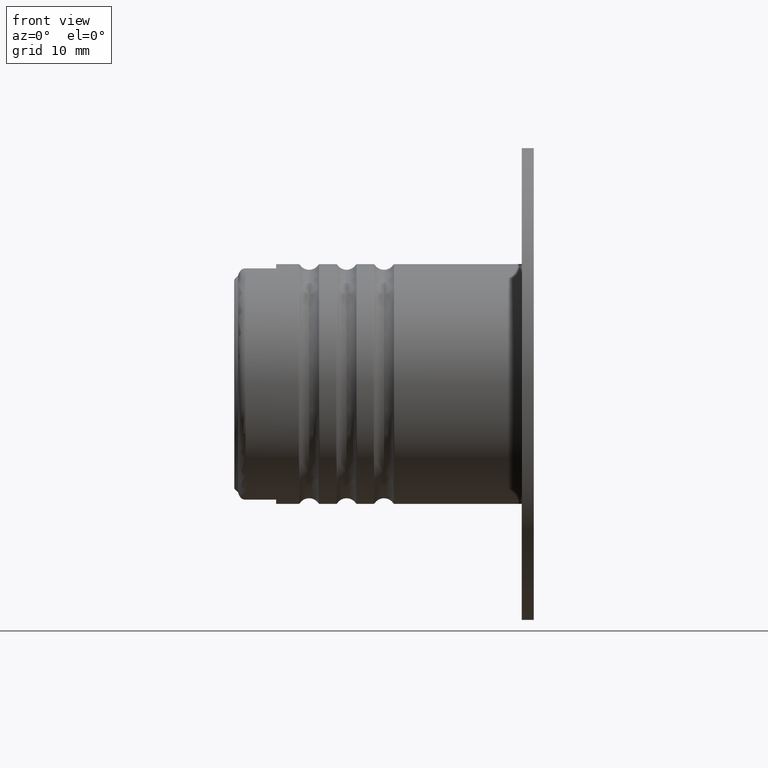
[diagram: clean part render]
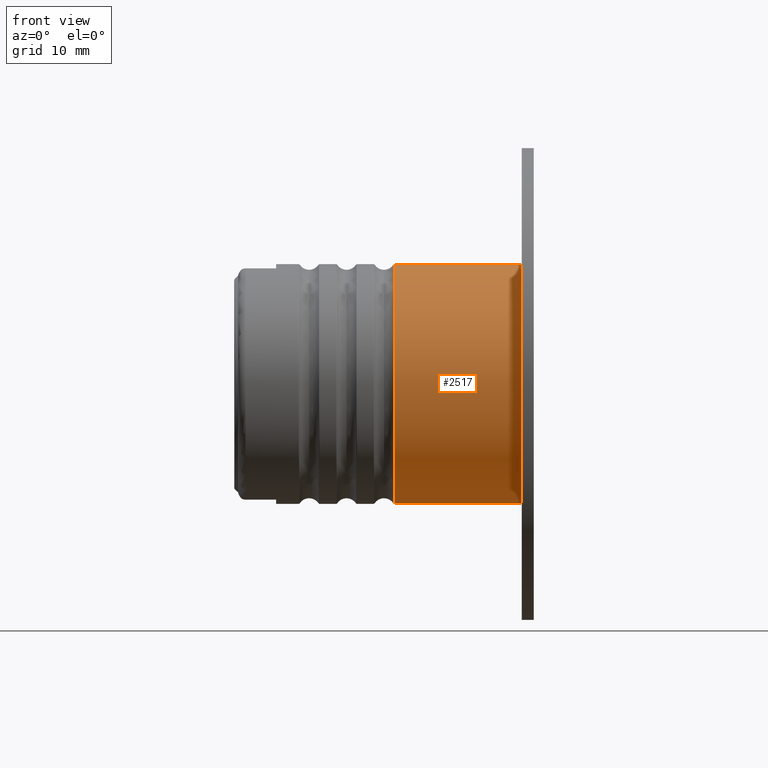
[diagram: same view with one face highlighted and labeled with its STEP entity id]
A machine part, front view. The second image highlights one B-rep face of the part: STEP entity #2517.
In plain terms, the highlighted cylindrical surface (partial cylindrical patch) has radius 16 mm, axis along (1, 0, 0).
Its self-contained STEP definition (entity closure, byte-faithful):
#46 = EDGE_CURVE ( 'NONE', #7342, #3645, #6607, .T. ) ;
#163 = VERTEX_POINT ( 'NONE', #3255 ) ;
#510 = ORIENTED_EDGE ( 'NONE', *, *, #6555, .F. ) ;
#784 = CIRCLE ( 'NONE', #7782, 16.00000000000000000 ) ;
#942 = DIRECTION ( 'NONE',  ( 0.0000000000000000000, 0.0000000000000000000, -1.000000000000000000 ) ) ;
#1160 = VERTEX_POINT ( 'NONE', #5059 ) ;
#1645 = CARTESIAN_POINT ( 'NONE',  ( 0.0000000000000000000, 0.0000000000000000000, -15.99999999999999645 ) ) ;
#1870 = DIRECTION ( 'NONE',  ( 0.0000000000000000000, 0.0000000000000000000, 1.000000000000000000 ) ) ;
#2030 = EDGE_LOOP ( 'NONE', ( #6479, #2967, #2267, #510 ) ) ;
#2098 = EDGE_CURVE ( 'NONE', #7342, #163, #784, .T. ) ;
#2267 = ORIENTED_EDGE ( 'NONE', *, *, #46, .T. ) ;
#2333 = CARTESIAN_POINT ( 'NONE',  ( -1.399999999999999023, 0.0000000000000000000, 0.0000000000000000000 ) ) ;
#2517 = ADVANCED_FACE ( 'NONE', ( #7076 ), #7562, .T. ) ;
#2654 = VECTOR ( 'NONE', #7621, 1000.000000000000000 ) ;
#2753 = AXIS2_PLACEMENT_3D ( 'NONE', #6976, #6377, #942 ) ;
#2967 = ORIENTED_EDGE ( 'NONE', *, *, #2098, .F. ) ;
#3029 = DIRECTION ( 'NONE',  ( 1.000000000000000000, -0.0000000000000000000, -0.0000000000000000000 ) ) ;
#3255 = CARTESIAN_POINT ( 'NONE',  ( -18.39016144201283254, 1.959434878635765131E-15, 16.00000000000000000 ) ) ;
#3645 = VERTEX_POINT ( 'NONE', #4556 ) ;
#3704 = CARTESIAN_POINT ( 'NONE',  ( -18.39016144201283254, 0.0000000000000000000, 0.0000000000000000000 ) ) ;
#3894 = CIRCLE ( 'NONE', #4065, 16.00000000000000000 ) ;
#4065 = AXIS2_PLACEMENT_3D ( 'NONE', #2333, #3029, #6632 ) ;
#4227 = EDGE_CURVE ( 'NONE', #163, #1160, #5007, .T. ) ;
#4423 = VECTOR ( 'NONE', #6162, 1000.000000000000000 ) ;
#4556 = CARTESIAN_POINT ( 'NONE',  ( -1.399999999999999023, 0.0000000000000000000, -16.00000000000000000 ) ) ;
#5007 = LINE ( 'NONE', #6827, #4423 ) ;
#5059 = CARTESIAN_POINT ( 'NONE',  ( -1.399999999999999023, 1.959434878635765131E-15, 16.00000000000000000 ) ) ;
#5506 = DIRECTION ( 'NONE',  ( -1.000000000000000000, -0.0000000000000000000, -0.0000000000000000000 ) ) ;
#5509 = CARTESIAN_POINT ( 'NONE',  ( -18.39016144201283254, 0.0000000000000000000, -16.00000000000000000 ) ) ;
#6162 = DIRECTION ( 'NONE',  ( 1.000000000000000000, -0.0000000000000000000, -0.0000000000000000000 ) ) ;
#6377 = DIRECTION ( 'NONE',  ( 1.000000000000000000, -0.0000000000000000000, -0.0000000000000000000 ) ) ;
#6479 = ORIENTED_EDGE ( 'NONE', *, *, #4227, .F. ) ;
#6555 = EDGE_CURVE ( 'NONE', #1160, #3645, #3894, .T. ) ;
#6607 = LINE ( 'NONE', #1645, #2654 ) ;
#6632 = DIRECTION ( 'NONE',  ( 0.0000000000000000000, 0.0000000000000000000, -1.000000000000000000 ) ) ;
#6827 = CARTESIAN_POINT ( 'NONE',  ( 0.0000000000000000000, 1.959434878635764737E-15, 15.99999999999999645 ) ) ;
#6976 = CARTESIAN_POINT ( 'NONE',  ( 0.0000000000000000000, 0.0000000000000000000, 0.0000000000000000000 ) ) ;
#7076 = FACE_OUTER_BOUND ( 'NONE', #2030, .T. ) ;
#7342 = VERTEX_POINT ( 'NONE', #5509 ) ;
#7562 = CYLINDRICAL_SURFACE ( 'NONE', #2753, 15.99999999999999645 ) ;
#7621 = DIRECTION ( 'NONE',  ( 1.000000000000000000, -0.0000000000000000000, -0.0000000000000000000 ) ) ;
#7782 = AXIS2_PLACEMENT_3D ( 'NONE', #3704, #5506, #1870 ) ;